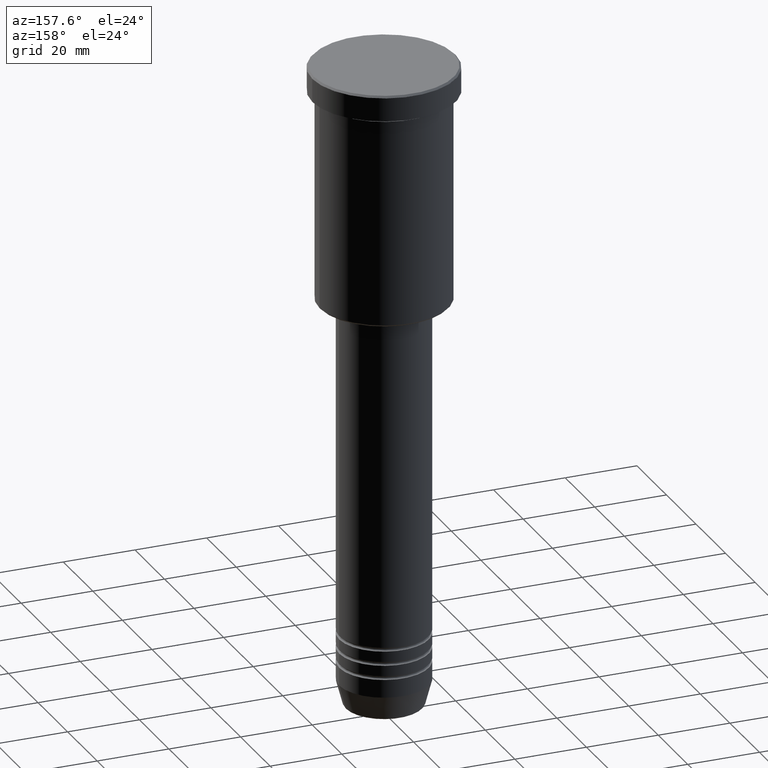
[diagram: clean part render]
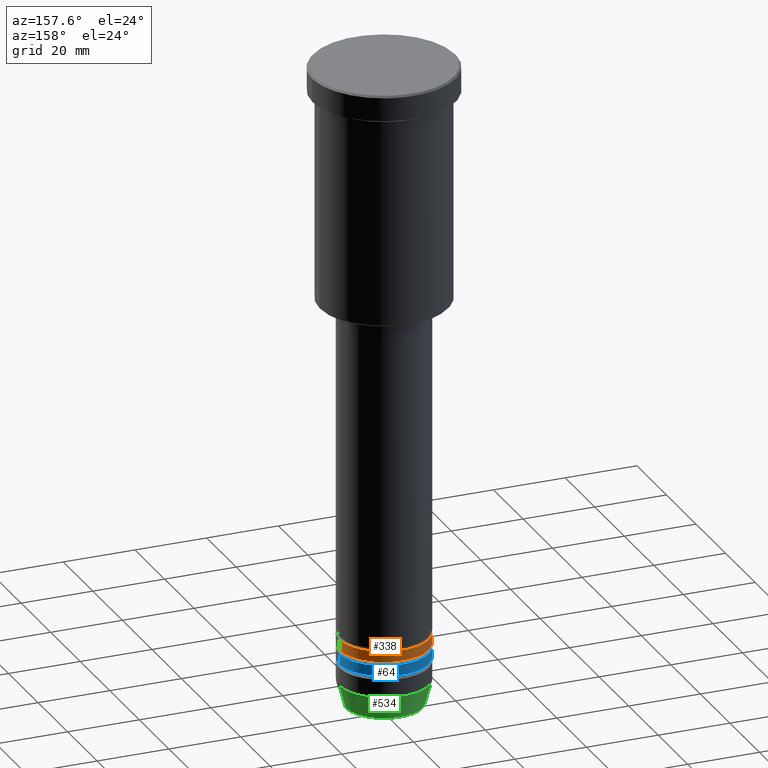
[diagram: same view with three faces highlighted in distinct colors, each labeled with its STEP entity id]
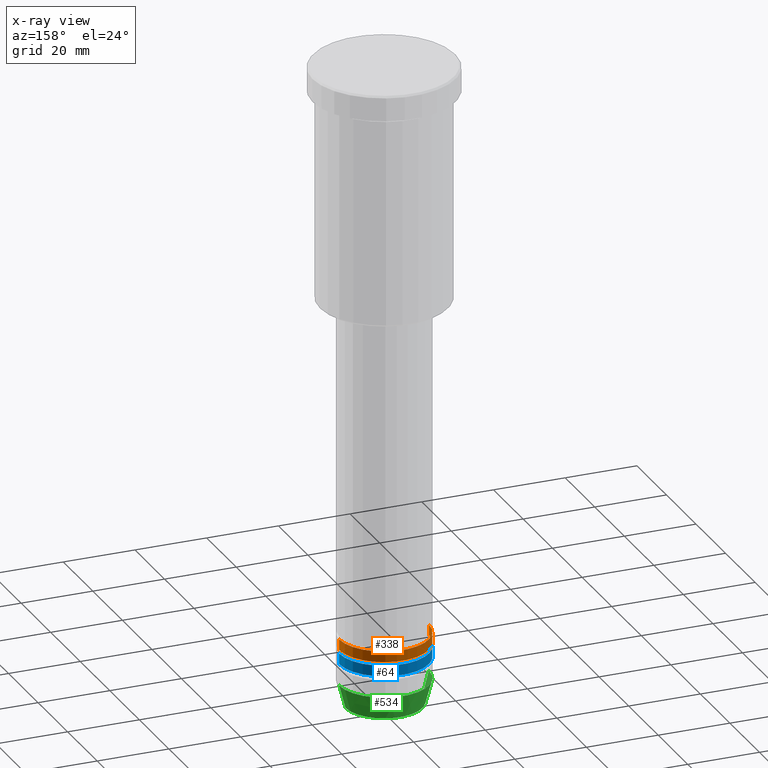
[diagram: x-ray of the same camera — body ghosted, the three highlighted faces saturated]
A machine part, auxiliary view with three faces highlighted in distinct colors.
The next image is the same camera in x-ray (body ghosted, the three faces saturated) — at least one of them is partly hidden behind the body in this view.
Their STEP definitions:

[orange] entity #338 — the highlighted cylindrical surface (partial cylindrical patch) has radius 12.5 mm, axis along (-0, -0, 1).
#13 = ORIENTED_EDGE ( 'NONE', *, *, #497, .T. ) ;
#61 = DIRECTION ( 'NONE',  ( -0.000000000000000000, -0.000000000000000000, 1.000000000000000000 ) ) ;
#73 = AXIS2_PLACEMENT_3D ( 'NONE', #480, #290, #655 ) ;
#77 = VECTOR ( 'NONE', #602, 1000.000000000000000 ) ;
#149 = CARTESIAN_POINT ( 'NONE',  ( 12.50000000000000178, 0.000000000000000000, 0.000000000000000000 ) ) ;
#156 = EDGE_CURVE ( 'NONE', #605, #487, #210, .T. ) ;
#180 = VERTEX_POINT ( 'NONE', #869 ) ;
#210 = CIRCLE ( 'NONE', #302, 12.50000000000000000 ) ;
#222 = ORIENTED_EDGE ( 'NONE', *, *, #1014, .F. ) ;
#253 = DIRECTION ( 'NONE',  ( -0.000000000000000000, -0.000000000000000000, 1.000000000000000000 ) ) ;
#265 = FACE_OUTER_BOUND ( 'NONE', #386, .T. ) ;
#290 = DIRECTION ( 'NONE',  ( -0.000000000000000000, -0.000000000000000000, 1.000000000000000000 ) ) ;
#302 = AXIS2_PLACEMENT_3D ( 'NONE', #857, #1148, #585 ) ;
#304 = AXIS2_PLACEMENT_3D ( 'NONE', #355, #61, #1168 ) ;
#338 = ADVANCED_FACE ( 'NONE', ( #265 ), #714, .T. ) ;
#355 = CARTESIAN_POINT ( 'NONE',  ( 0.000000000000000000, 0.000000000000000000, 0.000000000000000000 ) ) ;
#386 = EDGE_LOOP ( 'NONE', ( #13, #1035, #702, #222 ) ) ;
#480 = CARTESIAN_POINT ( 'NONE',  ( 0.000000000000000000, 0.000000000000000000, -163.0000000000000000 ) ) ;
#487 = VERTEX_POINT ( 'NONE', #660 ) ;
#497 = EDGE_CURVE ( 'NONE', #180, #662, #1104, .T. ) ;
#532 = LINE ( 'NONE', #1071, #705 ) ;
#585 = DIRECTION ( 'NONE',  ( 1.000000000000000000, 0.000000000000000000, 0.000000000000000000 ) ) ;
#602 = DIRECTION ( 'NONE',  ( -0.000000000000000000, -0.000000000000000000, 1.000000000000000000 ) ) ;
#603 = CARTESIAN_POINT ( 'NONE',  ( -12.50000000000000533, 1.530808498934192113E-15, -163.0000000000000000 ) ) ;
#605 = VERTEX_POINT ( 'NONE', #848 ) ;
#655 = DIRECTION ( 'NONE',  ( 1.000000000000000000, 0.000000000000000000, 0.000000000000000000 ) ) ;
#660 = CARTESIAN_POINT ( 'NONE',  ( -12.50000000000000000, 1.530808498934191719E-15, -160.0000000000000000 ) ) ;
#662 = VERTEX_POINT ( 'NONE', #603 ) ;
#702 = ORIENTED_EDGE ( 'NONE', *, *, #156, .F. ) ;
#705 = VECTOR ( 'NONE', #253, 1000.000000000000000 ) ;
#714 = CYLINDRICAL_SURFACE ( 'NONE', #304, 12.50000000000000178 ) ;
#736 = EDGE_CURVE ( 'NONE', #662, #487, #532, .T. ) ;
#848 = CARTESIAN_POINT ( 'NONE',  ( 12.50000000000000000, 0.000000000000000000, -160.0000000000000000 ) ) ;
#857 = CARTESIAN_POINT ( 'NONE',  ( 0.000000000000000000, 0.000000000000000000, -160.0000000000000000 ) ) ;
#869 = CARTESIAN_POINT ( 'NONE',  ( 12.50000000000000355, 0.000000000000000000, -163.0000000000000000 ) ) ;
#1014 = EDGE_CURVE ( 'NONE', #180, #605, #1156, .T. ) ;
#1035 = ORIENTED_EDGE ( 'NONE', *, *, #736, .T. ) ;
#1071 = CARTESIAN_POINT ( 'NONE',  ( -12.50000000000000178, 1.530808498934191719E-15, 0.000000000000000000 ) ) ;
#1104 = CIRCLE ( 'NONE', #73, 12.50000000000000355 ) ;
#1148 = DIRECTION ( 'NONE',  ( -0.000000000000000000, -0.000000000000000000, 1.000000000000000000 ) ) ;
#1156 = LINE ( 'NONE', #149, #77 ) ;
#1168 = DIRECTION ( 'NONE',  ( 1.000000000000000000, 0.000000000000000000, 0.000000000000000000 ) ) ;

[blue] entity #64 — the highlighted cylindrical surface (partial cylindrical patch) has radius 12.5 mm, axis along (-0, -0, 1).
#8 = CARTESIAN_POINT ( 'NONE',  ( 0.000000000000000000, 0.000000000000000000, 0.000000000000000000 ) ) ;
#21 = EDGE_CURVE ( 'NONE', #250, #860, #558, .T. ) ;
#49 = ORIENTED_EDGE ( 'NONE', *, *, #21, .T. ) ;
#64 = ADVANCED_FACE ( 'NONE', ( #205 ), #830, .T. ) ;
#110 = AXIS2_PLACEMENT_3D ( 'NONE', #8, #285, #925 ) ;
#170 = EDGE_CURVE ( 'NONE', #375, #639, #956, .T. ) ;
#177 = CIRCLE ( 'NONE', #914, 12.50000000000000000 ) ;
#205 = FACE_OUTER_BOUND ( 'NONE', #352, .T. ) ;
#244 = CARTESIAN_POINT ( 'NONE',  ( 0.000000000000000000, 0.000000000000000000, -164.0000000000000000 ) ) ;
#250 = VERTEX_POINT ( 'NONE', #709 ) ;
#261 = DIRECTION ( 'NONE',  ( -0.000000000000000000, -0.000000000000000000, 1.000000000000000000 ) ) ;
#285 = DIRECTION ( 'NONE',  ( -0.000000000000000000, -0.000000000000000000, 1.000000000000000000 ) ) ;
#352 = EDGE_LOOP ( 'NONE', ( #492, #49, #1051, #1005 ) ) ;
#375 = VERTEX_POINT ( 'NONE', #1065 ) ;
#492 = ORIENTED_EDGE ( 'NONE', *, *, #1175, .T. ) ;
#503 = CARTESIAN_POINT ( 'NONE',  ( 12.50000000000000000, 0.000000000000000000, -164.0000000000000000 ) ) ;
#515 = DIRECTION ( 'NONE',  ( -0.000000000000000000, -0.000000000000000000, 1.000000000000000000 ) ) ;
#558 = LINE ( 'NONE', #565, #590 ) ;
#565 = CARTESIAN_POINT ( 'NONE',  ( -12.50000000000000000, 1.530808498934191521E-15, 0.000000000000000000 ) ) ;
#590 = VECTOR ( 'NONE', #916, 1000.000000000000000 ) ;
#614 = CIRCLE ( 'NONE', #839, 12.50000000000000000 ) ;
#632 = DIRECTION ( 'NONE',  ( 1.000000000000000000, 0.000000000000000000, 0.000000000000000000 ) ) ;
#639 = VERTEX_POINT ( 'NONE', #503 ) ;
#709 = CARTESIAN_POINT ( 'NONE',  ( -12.50000000000000000, 1.530808498934191521E-15, -166.9999999999999716 ) ) ;
#732 = EDGE_CURVE ( 'NONE', #639, #860, #614, .T. ) ;
#750 = CARTESIAN_POINT ( 'NONE',  ( -12.50000000000000000, 1.530808498934191521E-15, -164.0000000000000000 ) ) ;
#830 = CYLINDRICAL_SURFACE ( 'NONE', #110, 12.50000000000000000 ) ;
#839 = AXIS2_PLACEMENT_3D ( 'NONE', #244, #515, #632 ) ;
#860 = VERTEX_POINT ( 'NONE', #750 ) ;
#907 = CARTESIAN_POINT ( 'NONE',  ( 0.000000000000000000, 0.000000000000000000, -166.9999999999999716 ) ) ;
#914 = AXIS2_PLACEMENT_3D ( 'NONE', #907, #261, #983 ) ;
#916 = DIRECTION ( 'NONE',  ( -0.000000000000000000, -0.000000000000000000, 1.000000000000000000 ) ) ;
#925 = DIRECTION ( 'NONE',  ( 1.000000000000000000, 0.000000000000000000, 0.000000000000000000 ) ) ;
#945 = VECTOR ( 'NONE', #1038, 1000.000000000000000 ) ;
#956 = LINE ( 'NONE', #1130, #945 ) ;
#983 = DIRECTION ( 'NONE',  ( 1.000000000000000000, 0.000000000000000000, 0.000000000000000000 ) ) ;
#1005 = ORIENTED_EDGE ( 'NONE', *, *, #170, .F. ) ;
#1038 = DIRECTION ( 'NONE',  ( -0.000000000000000000, -0.000000000000000000, 1.000000000000000000 ) ) ;
#1051 = ORIENTED_EDGE ( 'NONE', *, *, #732, .F. ) ;
#1065 = CARTESIAN_POINT ( 'NONE',  ( 12.50000000000000000, 0.000000000000000000, -166.9999999999999716 ) ) ;
#1130 = CARTESIAN_POINT ( 'NONE',  ( 12.50000000000000000, 0.000000000000000000, 0.000000000000000000 ) ) ;
#1175 = EDGE_CURVE ( 'NONE', #375, #250, #177, .T. ) ;

[green] entity #534 — the highlighted conical surface has half-angle 15 deg.
#25 = VERTEX_POINT ( 'NONE', #98 ) ;
#43 = DIRECTION ( 'NONE',  ( 1.000000000000000000, 0.000000000000000000, 0.000000000000000000 ) ) ;
#67 = ORIENTED_EDGE ( 'NONE', *, *, #483, .F. ) ;
#79 = CARTESIAN_POINT ( 'NONE',  ( 12.50000000000000000, 0.000000000000000000, -173.0000000000000284 ) ) ;
#98 = CARTESIAN_POINT ( 'NONE',  ( 12.50000000000000000, 0.000000000000000000, -173.0000000000000284 ) ) ;
#101 = CARTESIAN_POINT ( 'NONE',  ( 10.72365507213719127, 0.000000000000000000, -179.6294095225512706 ) ) ;
#109 = EDGE_LOOP ( 'NONE', ( #376, #133, #67, #528 ) ) ;
#112 = AXIS2_PLACEMENT_3D ( 'NONE', #378, #1113, #744 ) ;
#115 = CARTESIAN_POINT ( 'NONE',  ( 0.000000000000000000, 0.000000000000000000, -173.0000000000000284 ) ) ;
#131 = EDGE_CURVE ( 'NONE', #926, #756, #723, .T. ) ;
#133 = ORIENTED_EDGE ( 'NONE', *, *, #1033, .T. ) ;
#147 = CARTESIAN_POINT ( 'NONE',  ( 0.000000000000000000, 0.000000000000000000, -179.6294095225512706 ) ) ;
#158 = DIRECTION ( 'NONE',  ( -0.2588190451025213501, 3.169619151431772337E-17, 0.9659258262890680902 ) ) ;
#166 = CARTESIAN_POINT ( 'NONE',  ( -12.50000000000000000, 1.530808498934191521E-15, -173.0000000000000284 ) ) ;
#194 = VECTOR ( 'NONE', #622, 1000.000000000000000 ) ;
#228 = VECTOR ( 'NONE', #158, 1000.000000000000000 ) ;
#284 = CONICAL_SURFACE ( 'NONE', #322, 12.50000000000000000, 0.2617993877991500740 ) ;
#314 = VERTEX_POINT ( 'NONE', #166 ) ;
#322 = AXIS2_PLACEMENT_3D ( 'NONE', #115, #546, #905 ) ;
#334 = CARTESIAN_POINT ( 'NONE',  ( -12.50000000000000000, 1.530808498934191521E-15, -173.0000000000000284 ) ) ;
#360 = AXIS2_PLACEMENT_3D ( 'NONE', #147, #864, #43 ) ;
#376 = ORIENTED_EDGE ( 'NONE', *, *, #131, .T. ) ;
#378 = CARTESIAN_POINT ( 'NONE',  ( 0.000000000000000000, 0.000000000000000000, -173.0000000000000284 ) ) ;
#412 = LINE ( 'NONE', #334, #228 ) ;
#483 = EDGE_CURVE ( 'NONE', #25, #314, #1066, .T. ) ;
#528 = ORIENTED_EDGE ( 'NONE', *, *, #758, .F. ) ;
#534 = ADVANCED_FACE ( 'NONE', ( #571 ), #284, .T. ) ;
#546 = DIRECTION ( 'NONE',  ( -0.000000000000000000, -0.000000000000000000, 1.000000000000000000 ) ) ;
#571 = FACE_OUTER_BOUND ( 'NONE', #109, .T. ) ;
#622 = DIRECTION ( 'NONE',  ( 0.2588190451025213501, 0.000000000000000000, 0.9659258262890680902 ) ) ;
#723 = CIRCLE ( 'NONE', #360, 10.72365507213719127 ) ;
#744 = DIRECTION ( 'NONE',  ( 1.000000000000000000, 0.000000000000000000, 0.000000000000000000 ) ) ;
#756 = VERTEX_POINT ( 'NONE', #1171 ) ;
#758 = EDGE_CURVE ( 'NONE', #926, #25, #881, .T. ) ;
#864 = DIRECTION ( 'NONE',  ( -0.000000000000000000, -0.000000000000000000, 1.000000000000000000 ) ) ;
#881 = LINE ( 'NONE', #79, #194 ) ;
#905 = DIRECTION ( 'NONE',  ( 1.000000000000000000, 0.000000000000000000, 0.000000000000000000 ) ) ;
#926 = VERTEX_POINT ( 'NONE', #101 ) ;
#1033 = EDGE_CURVE ( 'NONE', #756, #314, #412, .T. ) ;
#1066 = CIRCLE ( 'NONE', #112, 12.50000000000000000 ) ;
#1113 = DIRECTION ( 'NONE',  ( -0.000000000000000000, -0.000000000000000000, 1.000000000000000000 ) ) ;
#1171 = CARTESIAN_POINT ( 'NONE',  ( -10.72365507213719127, 1.422038742429750516E-15, -179.6294095225512706 ) ) ;